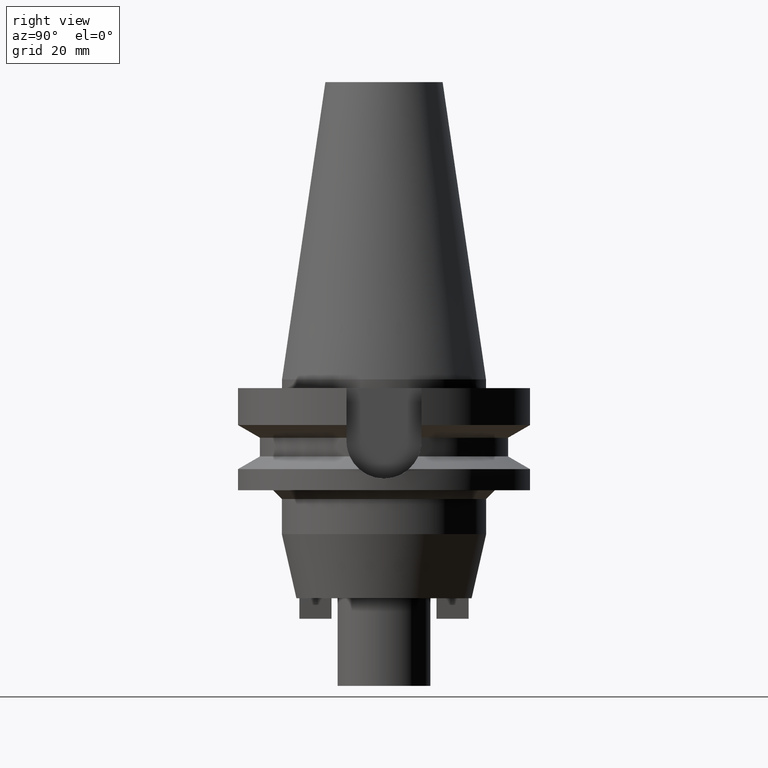
[diagram: clean part render]
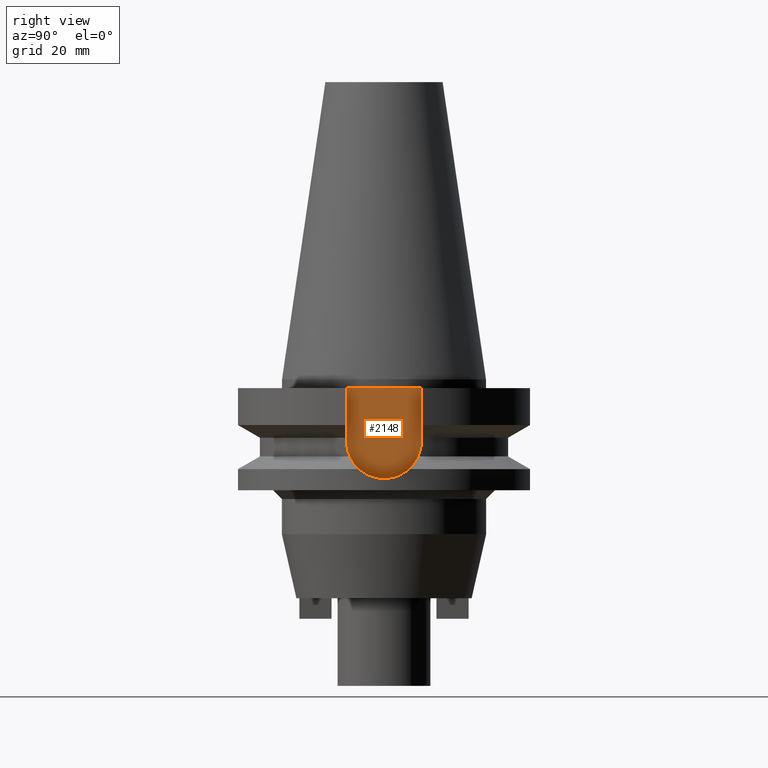
[diagram: same view with one face highlighted and labeled with its STEP entity id]
A machine part, right view. The second image highlights one B-rep face of the part: STEP entity #2148.
In plain terms, the highlighted planar face has unit normal (1, 0, 0).
Its self-contained STEP definition (entity closure, byte-faithful):
#769=DIRECTION('',(0.E0,0.E0,-1.E0));
#770=VECTOR('',#769,1.815E1);
#771=CARTESIAN_POINT('',(3.54E1,1.285E1,-3.E0));
#772=LINE('',#771,#770);
#776=CARTESIAN_POINT('',(3.54E1,0.E0,-2.115E1));
#777=DIRECTION('',(-1.E0,0.E0,0.E0));
#778=DIRECTION('',(0.E0,1.E0,0.E0));
#779=AXIS2_PLACEMENT_3D('',#776,#777,#778);
#784=CARTESIAN_POINT('',(3.54E1,0.E0,-2.115E1));
#785=DIRECTION('',(-1.E0,0.E0,0.E0));
#786=DIRECTION('',(0.E0,0.E0,-1.E0));
#787=AXIS2_PLACEMENT_3D('',#784,#785,#786);
#792=DIRECTION('',(0.E0,0.E0,1.E0));
#793=VECTOR('',#792,1.815E1);
#794=CARTESIAN_POINT('',(3.54E1,-1.285E1,-2.115E1));
#795=LINE('',#794,#793);
#829=DIRECTION('',(0.E0,-1.E0,0.E0));
#830=VECTOR('',#829,2.57E1);
#831=CARTESIAN_POINT('',(3.54E1,1.285E1,-3.E0));
#832=LINE('',#831,#830);
#1393=CARTESIAN_POINT('',(3.54E1,-1.285E1,-2.115E1));
#1394=VERTEX_POINT('',#1393);
#1395=CARTESIAN_POINT('',(3.54E1,0.E0,-3.4E1));
#1396=VERTEX_POINT('',#1395);
#1397=CARTESIAN_POINT('',(3.54E1,1.285E1,-2.115E1));
#1398=VERTEX_POINT('',#1397);
#1445=CARTESIAN_POINT('',(3.54E1,1.285E1,-3.E0));
#1446=VERTEX_POINT('',#1445);
#1447=CARTESIAN_POINT('',(3.54E1,-1.285E1,-3.E0));
#1448=VERTEX_POINT('',#1447);
#2134=CARTESIAN_POINT('',(3.54E1,0.E0,0.E0));
#2135=DIRECTION('',(1.E0,0.E0,0.E0));
#2136=DIRECTION('',(0.E0,0.E0,-1.E0));
#2137=AXIS2_PLACEMENT_3D('',#2134,#2135,#2136);
#2138=PLANE('',#2137);
#2140=ORIENTED_EDGE('',*,*,#2139,.F.);
#2141=ORIENTED_EDGE('',*,*,#2123,.T.);
#2142=ORIENTED_EDGE('',*,*,#2011,.T.);
#2143=ORIENTED_EDGE('',*,*,#2009,.T.);
#2145=ORIENTED_EDGE('',*,*,#2144,.T.);
#2146=EDGE_LOOP('',(#2140,#2141,#2142,#2143,#2145));
#2147=FACE_OUTER_BOUND('',#2146,.F.);
#780=CIRCLE('',#779,1.285E1);
#788=CIRCLE('',#787,1.285E1);
#2009=EDGE_CURVE('',#1396,#1394,#788,.T.);
#2011=EDGE_CURVE('',#1398,#1396,#780,.T.);
#2123=EDGE_CURVE('',#1446,#1398,#772,.T.);
#2139=EDGE_CURVE('',#1446,#1448,#832,.T.);
#2144=EDGE_CURVE('',#1394,#1448,#795,.T.);
#2148=ADVANCED_FACE('',(#2147),#2138,.T.);